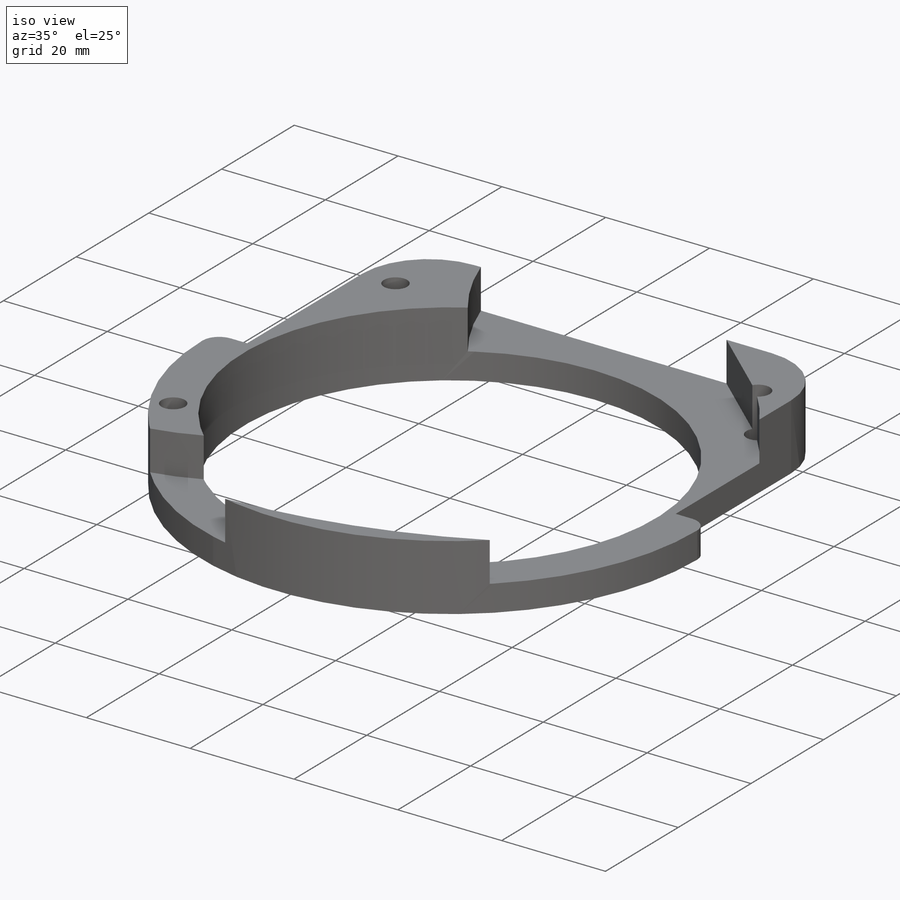
[diagram: iso view]
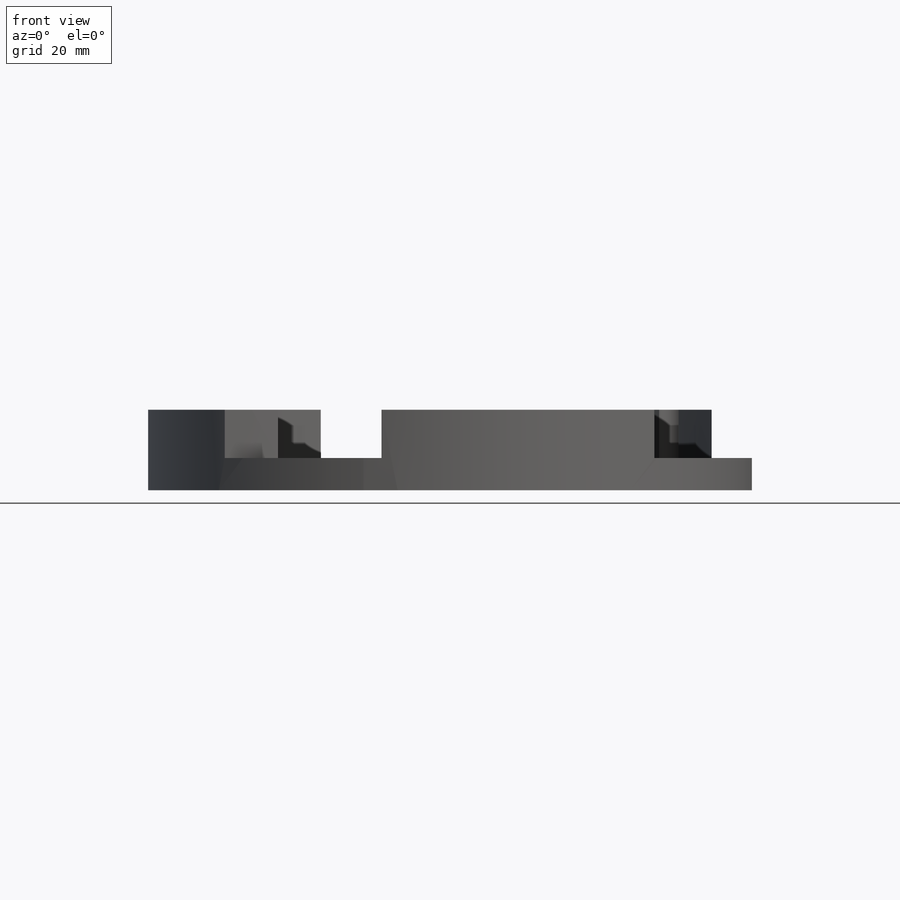
[diagram: front view]
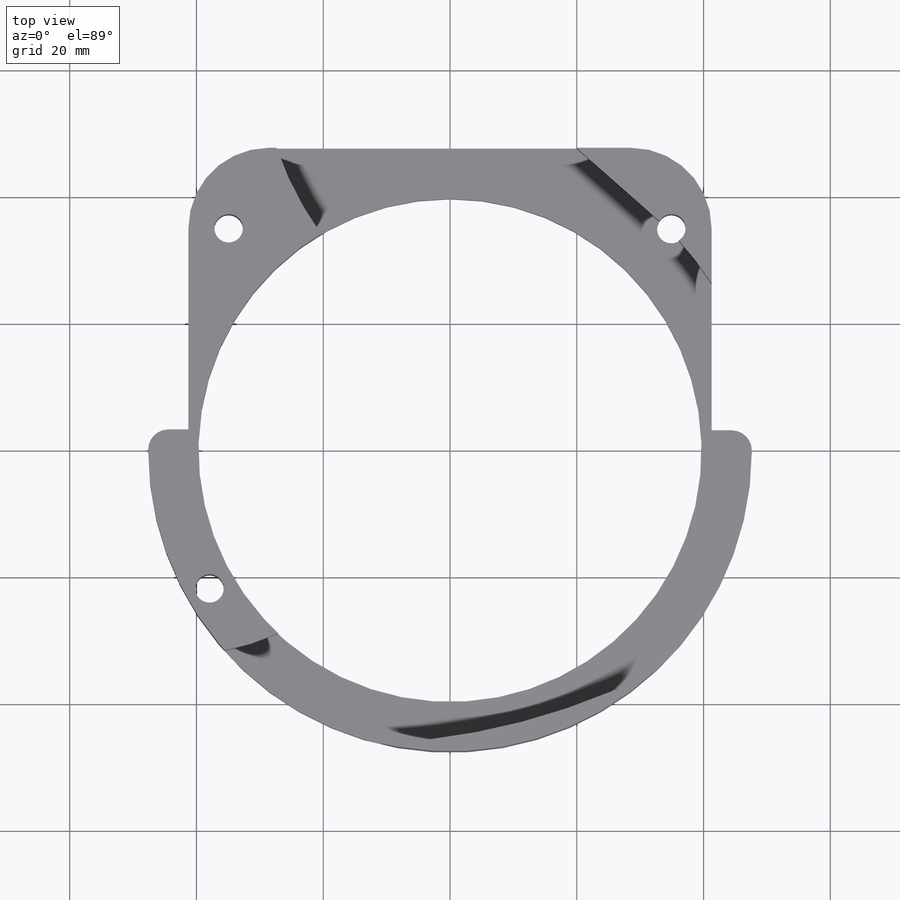
[diagram: top view]
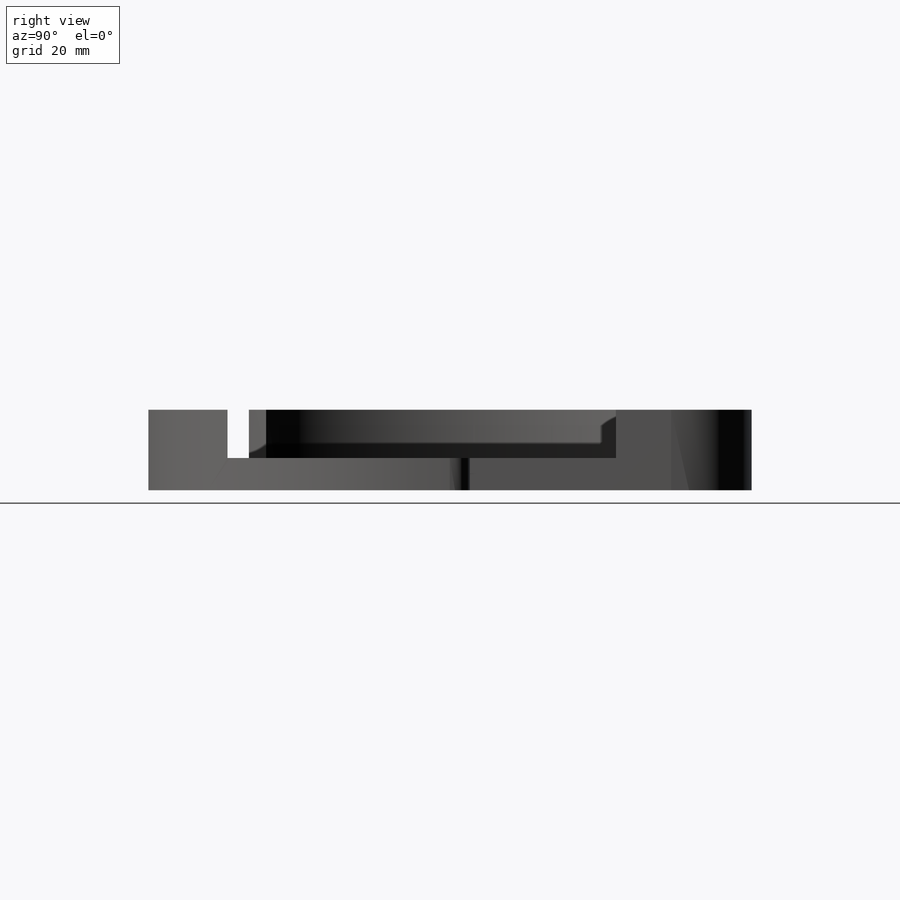
[diagram: right view]
SOLIDWORKS PART (.sldprt)
format: sldprt  version: not decoded by parser v0  size: 269,824 bytes
history: native  units: mm
features: sketch x5, cut_extrude x3, fillet x2, material x1, extrude x1 (+13 scaffold rows collapsed)
feature tree (25):
  scaffold x13  (default folders/planes/origin — collapsed)
  material  "ABS"
  sketch  "Sketch1"  dims[D4=79.375mm D1=95.25mm D2=3.175mm D3=6.35mm]
  extrude  "Boss-Extrude1"  Depth=12.7mm
  fillet  "Fillet1"  Radius=12.7mm
  fillet  "Fillet2"  Radius=3.175mm
  sketch  "Sketch2"  dims[D1=4.5mm D2=69.85mm]
  cut_extrude  "Cut-Extrude1"  [1 undecoded]
  sketch  "Sketch8"  dims[c1.D3=107.95mm c1.D4=42.418mm c2.D3=11.0mm c2.D4=39.37mm c2.D5=~39.961115mm c2.D7=50.8mm c2.D8=207.1604mm c2.D1=25.4mm c2.D2=12.7mm c3.D3=~29.49961mm c3.D5=25.4mm c3.D6=35.56mm c3.D7=19.685mm c3.D8=34.925mm c3.D9=~49.989869mm c3.D10=~56.473877mm c4.D5=6.35mm c4.D8=41.275mm c4.D9=82.55mm c4.D10=101.6mm]
  sketch  "Sketch6"  dims[c1.D2=11.0mm c1.D3=39.37mm c2.D2=39.37mm c2.D3=45.72mm c2.D6=50.8mm c2.D7=~106.862272mm c2.D8=~34.585675mm c2.D9=45.72mm c2.D1=35.56mm c2.D4=41.275mm c3.D1=~62.378853mm c3.D3=6.35mm c3.D4=~51.823188mm c3.D5=~64.360923mm c3.D7=3.175mm c3.D8=3.175mm c3.D9=3.175mm c4.D5=~71.588103mm]
  cut_extrude  "Cut-Extrude2"  Depth=7.62mm
  sketch  "Sketch9"  dims[c1.D3=4.5mm c1.D1=~40.49621mm c2.D1=30.0deg c2.D2=3.81mm]
  cut_extrude  "Cut-Extrude3"  [1 undecoded]
decode coverage: 9 of 11 modeling features carry decoded parameters
note: ~ marks probable driven/reference dimensions
note: 2 parameter values undecoded
note: suppression state not decoded; provenance and decode notes live in map.json
